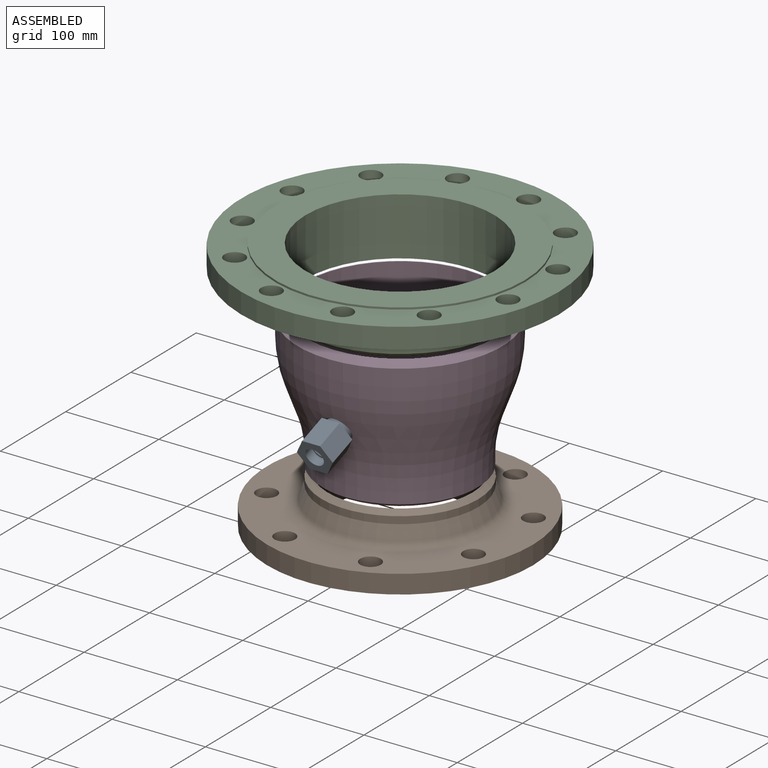
[diagram: assembled view]
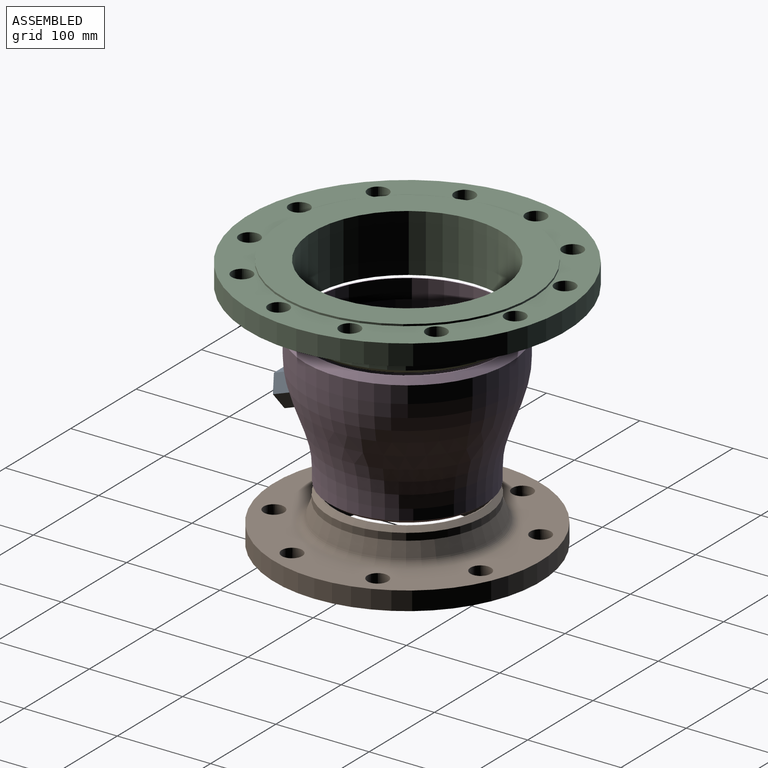
[diagram: assembled view, second angle]
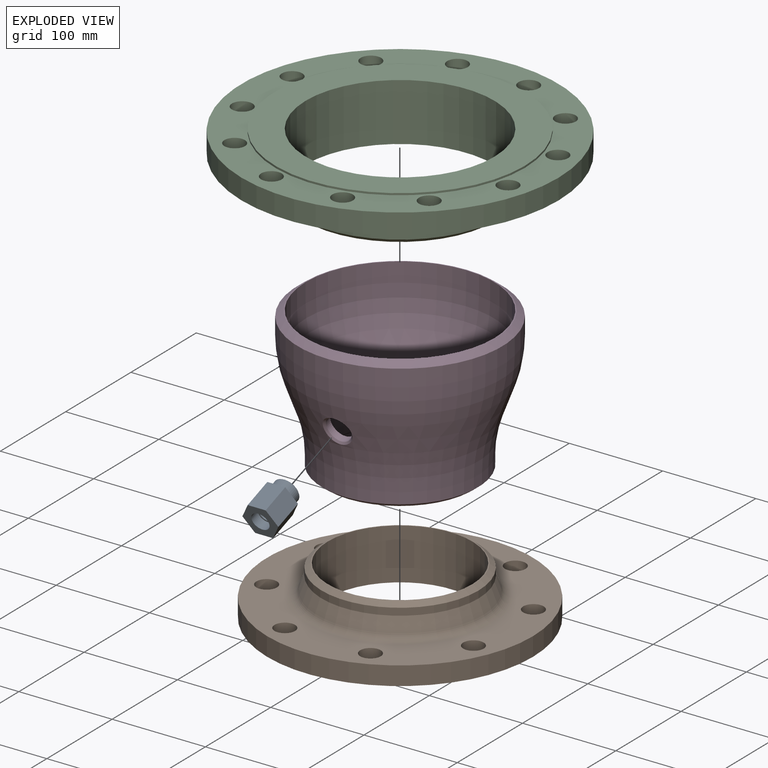
[diagram: exploded view]
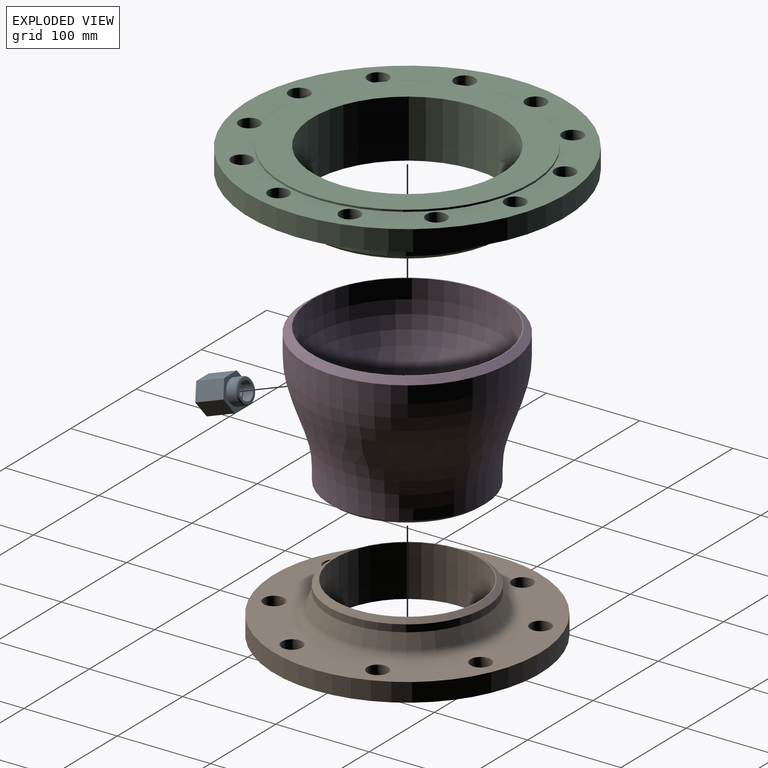
[diagram: exploded view, second angle]
ASSEMBLY  parts=4 mates=3
PART A: 16 faces, bbox 43.9x38.5x33.3 mm
  f0: cylinder r=9.53mm len=19.05mm, axis (-1,0,0), area 598.5mm2, adj f1,f8
  f1: plane 38.5x33.34mm, normal (1,0,0), area 677.6mm2, adj f0,f9,f10,f11,f12,f13,f14
  f2: plane 38.5x33.34mm, normal (-1,0,0), area 413.2mm2, adj f3,f9,f10,f11,f12,f13,f14
  f3: cylinder r=13.23mm len=26.45mm, axis (-1,0,0), area 905.7mm2, adj f2,f15
  f4: plane 24.45x24.45mm, normal (-1,0,0), area 184.5mm2, adj f5,f15
  f5: cylinder r=9.53mm len=19.05mm, axis (-1,0,0), area 670.3mm2, adj f4,f6
  f6: plane 19.05x19.05mm, normal (-1,0,0), area 84mm2, adj f5,f7
  f7: cylinder r=8mm len=22.7mm, axis (-1,0,0), area 1141mm2, adj f6,f8
  f8: plane 19.05x19.05mm, normal (1,0,0), area 84mm2, adj f0,f7
  f9: plane 32x19.25mm, normal (0,0,1), area 616mm2, adj f1,f2,f10,f14
  f10: plane 32x16.67mm, normal (0,0.87,0.5), area 616mm2, adj f1,f2,f9,f11
  f11: plane 32x16.67mm, normal (0,0.87,-0.5), area 616mm2, adj f1,f2,f10,f12
  f12: plane 32x19.25mm, normal (0,0,-1), area 616mm2, adj f1,f2,f11,f13
  f13: plane 32x16.67mm, normal (0,-0.87,-0.5), area 616mm2, adj f1,f2,f12,f14
  f14: plane 32x16.67mm, normal (0,-0.87,0.5), area 616mm2, adj f1,f2,f9,f13
  f15: cone r=12.22mm half-angle=45deg, axis (1,0,0), area 113.1mm2, adj f3,f4
PART B: 19 faces, bbox 285x285x55 mm
  f0: plane 157x157mm, normal (0,0,1), area 490.1mm2, adj f1,f17
  f1: cylinder r=77.5mm len=155mm, axis (0,0,1), area 26782.1mm2, adj f0,f2
  f2: plane 212x212mm, normal (0,0,-1), area 16429.7mm2, adj f1,f3
  f3: cylinder r=106mm len=212mm, axis (0,0,1), area 1332mm2, adj f2,f4
  f4: plane 285x285mm, normal (0,0,-1), area 25454mm2, adj f3,f5,f9,f10,f11,f12,f13,f14
  f5: cylinder r=142.5mm len=285mm, axis (0,0,1), area 17907.1mm2, adj f4,f6
  f6: plane 285x285mm, normal (0,0,1), area 30000.9mm2, adj f5,f9,f10,f11,f12,f13,f14,f15
  f7: cone r=92mm half-angle=20.5deg, axis (0,0,-1), area 8449.2mm2, adj f8,f18
  f8: cylinder r=84.15mm len=168.3mm, axis (0,0,1), area 4052.5mm2, adj f7,f17
  f9: cylinder r=11mm len=22mm, axis (0,0,1), area 1382.3mm2, adj f4,f6
  f10: cylinder r=11mm len=22mm, axis (0,0,1), area 1382.3mm2, adj f4,f6
  f11: cylinder r=11mm len=22mm, axis (0,0,1), area 1382.3mm2, adj f4,f6
  f12: cylinder r=11mm len=22mm, axis (0,0,1), area 1382.3mm2, adj f4,f6
  f13: cylinder r=11mm len=22mm, axis (0,0,1), area 1382.3mm2, adj f4,f6
  f14: cylinder r=11mm len=22mm, axis (0,0,1), area 1382.3mm2, adj f4,f6
  f15: cylinder r=11mm len=22mm, axis (0,0,1), area 1382.3mm2, adj f4,f6
  f16: cylinder r=11mm len=22mm, axis (0,0,1), area 1382.3mm2, adj f4,f6
  f17: cone r=78.5mm half-angle=52.5deg, axis (0,0,-1), area 3639mm2, adj f0,f8
  f18: torus R=98.94mm, axis (0,0,-1), area 7132.7mm2, adj f6,f7
PART C: 23 faces, bbox 340x340x62 mm
  f0: plane 204.6x204.6mm, normal (0,0,1), area 639.6mm2, adj f1,f21
  f1: cylinder r=101.3mm len=202.6mm, axis (0,0,1), area 39462.2mm2, adj f0,f2
  f2: plane 268x268mm, normal (0,0,-1), area 24172.4mm2, adj f1,f3
  f3: cylinder r=134mm len=268mm, axis (0,0,1), area 1683.9mm2, adj f2,f4
  f4: plane 340x340mm, normal (0,0,-1), area 29820mm2, adj f3,f5,f9,f10,f11,f12,f13,f14
  f5: cylinder r=170mm len=340mm, axis (0,0,1), area 23499.1mm2, adj f4,f6
  f6: plane 340x340mm, normal (0,0,1), area 37519.9mm2, adj f5,f9,f10,f11,f12,f13,f14,f15
  f7: cone r=117.5mm half-angle=19.9deg, axis (0,0,-1), area 11556.2mm2, adj f8,f22
  f8: cylinder r=109.55mm len=219.1mm, axis (0,0,1), area 7183.9mm2, adj f7,f21
  f9: cylinder r=11mm len=22mm, axis (0,0,1), area 1520.5mm2, adj f4,f6
  f10: cylinder r=11mm len=22mm, axis (0,0,1), area 1520.5mm2, adj f4,f6
  f11: cylinder r=11mm len=22mm, axis (0,0,1), area 1520.5mm2, adj f4,f6
  f12: cylinder r=11mm len=22mm, axis (0,0,1), area 1520.5mm2, adj f4,f6
  f13: cylinder r=11mm len=22mm, axis (0,0,1), area 1520.5mm2, adj f4,f6
  f14: cylinder r=11mm len=22mm, axis (0,0,1), area 1520.5mm2, adj f4,f6
  f15: cylinder r=11mm len=22mm, axis (0,0,1), area 1520.5mm2, adj f4,f6
  f16: cylinder r=11mm len=22mm, axis (0,0,1), area 1520.5mm2, adj f4,f6
  f17: cylinder r=11mm len=22mm, axis (0,0,1), area 1520.5mm2, adj f4,f6
  f18: cylinder r=11mm len=22mm, axis (0,0,1), area 1520.5mm2, adj f4,f6
  f19: cylinder r=11mm len=22mm, axis (0,0,1), area 1520.5mm2, adj f4,f6
  f20: cylinder r=11mm len=22mm, axis (0,0,1), area 1520.5mm2, adj f4,f6
  f21: cone r=102.3mm half-angle=52.5deg, axis (0,0,-1), area 6082mm2, adj f0,f8
  f22: torus R=124.52mm, axis (0,0,-1), area 9161.8mm2, adj f6,f7
PART D: 19 faces, bbox 222.7x256.6x256.6 mm
  f0: cylinder r=109.7mm len=219.4mm, axis (-1,0,0), area 12518.8mm2, adj f3,f12
  f1: cone r=109.7mm half-angle=20deg, axis (1,0,0), area 19641.3mm2, adj f12,f13,f18
  f2: cylinder r=83.75mm len=167.5mm, axis (-1,0,0), area 6164.8mm2, adj f4,f13
  f3: cone r=109.7mm half-angle=52.5deg, axis (-1,0,0), area 6212.3mm2, adj f0,f6
  f4: cone r=83.75mm half-angle=52.5deg, axis (1,0,0), area 3373.1mm2, adj f2,f11
  f5: cylinder r=101.3mm len=202.6mm, axis (-1,0,0), area 13115mm2, adj f6,f15
  f6: plane 204.6x204.6mm, normal (1,0,0), area 639.6mm2, adj f3,f5
  f7: cone r=101.3mm half-angle=20deg, axis (1,0,0), area 19867.1mm2, adj f14,f15,f17
  f8: cylinder r=74.15mm len=148.3mm, axis (-1,0,0), area 4045mm2, adj f14,f16
  f9: plane 155x155mm, normal (-1,0,0), area 1127mm2, adj f10,f16
  f10: cylinder r=77.5mm len=155mm, axis (1,0,0), area 2921.7mm2, adj f9,f11
  f11: plane 157x157mm, normal (-1,0,0), area 490.1mm2, adj f4,f10
  f12: revolved ~219.4x219.4mm, area 28234.4mm2, adj f0,f1
  f13: torus R=203.75mm, axis (-1,0,0), area 22679.6mm2, adj f1,f2
  f14: torus R=194.15mm, axis (1,0,0), area 20153mm2, adj f7,f8
  f15: revolved ~202.6x202.6mm, area 26023.6mm2, adj f5,f7
  f16: cone r=75.15mm half-angle=45deg, axis (-1,0,0), area 663.3mm2, adj f8,f9
  f17: cylinder r=13.4mm len=27.73mm, axis (0.34,0,-0.94), area 585.6mm2, adj f7,f18
  f18: bspline ~31.33x28.99mm, area 252.2mm2, adj f1,f17
PLACE A rot(axis=(0.17,0.17,-0.97),91.7deg) t=(-1.33,-89.33,135.48)mm
PLACE B t=(-1.33,-0.01,2.23)mm fixed
PLACE C rot(axis=(1,0,0),180deg) t=(-1.33,-0.01,278.43)mm
PLACE D rot(axis=(0.58,-0.58,0.58),120deg) t=(-1.33,-0.01,60.23)mm
MATE fastened A.f0 <-> D.f17  axis (0,0.94,0.34) through (-1.33,-95.39,133.27)mm
MATE fastened D.f0 <-> B.f1  axis (0,0,-1) through (-1.33,-0.01,60.23)mm
MATE fastened C.f1 <-> D.f0  axis (0,0,-1) through (-1.33,-0.01,216.43)mm
